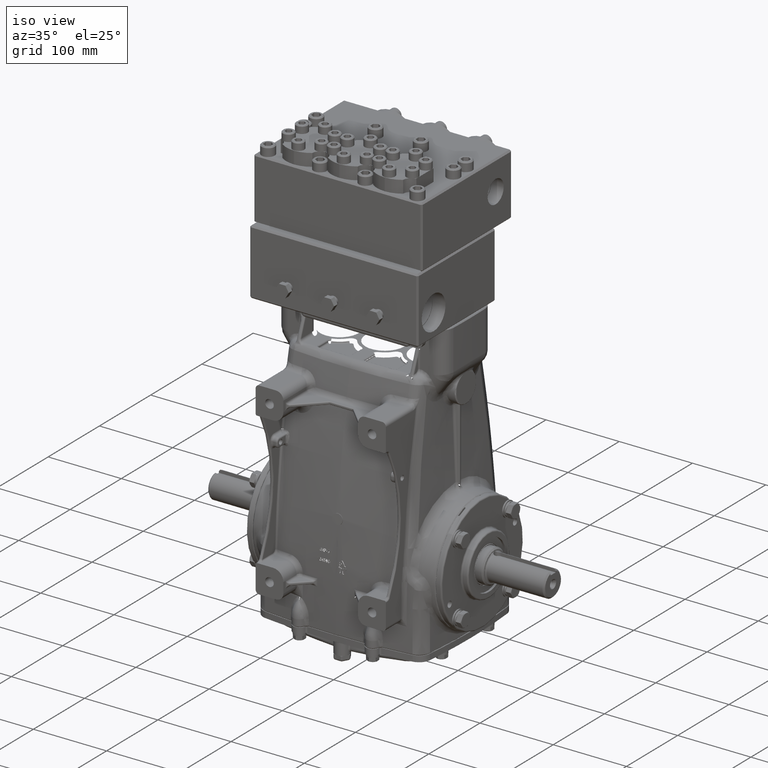
[diagram: clean part render]
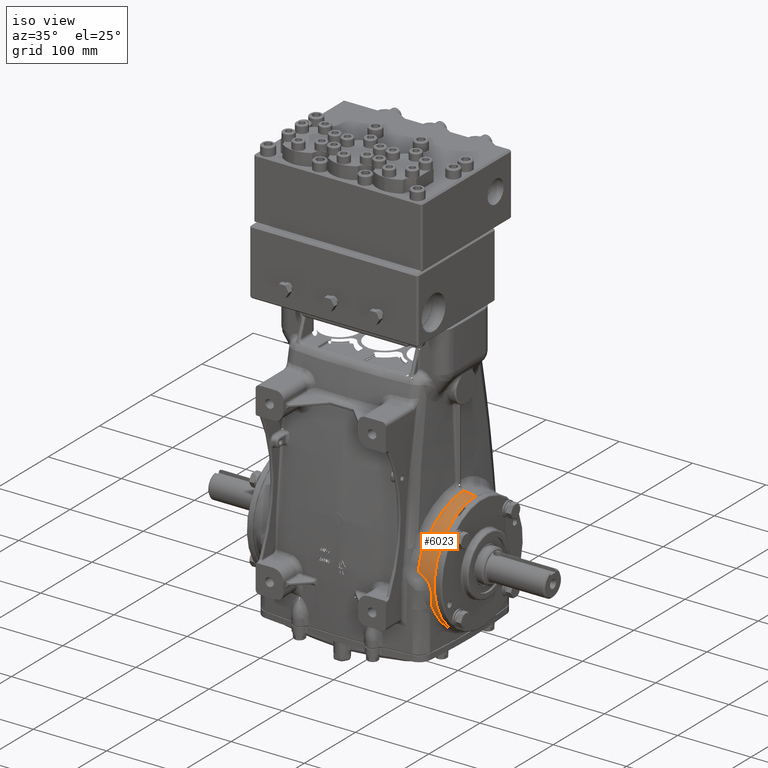
[diagram: same view with one face highlighted and labeled with its STEP entity id]
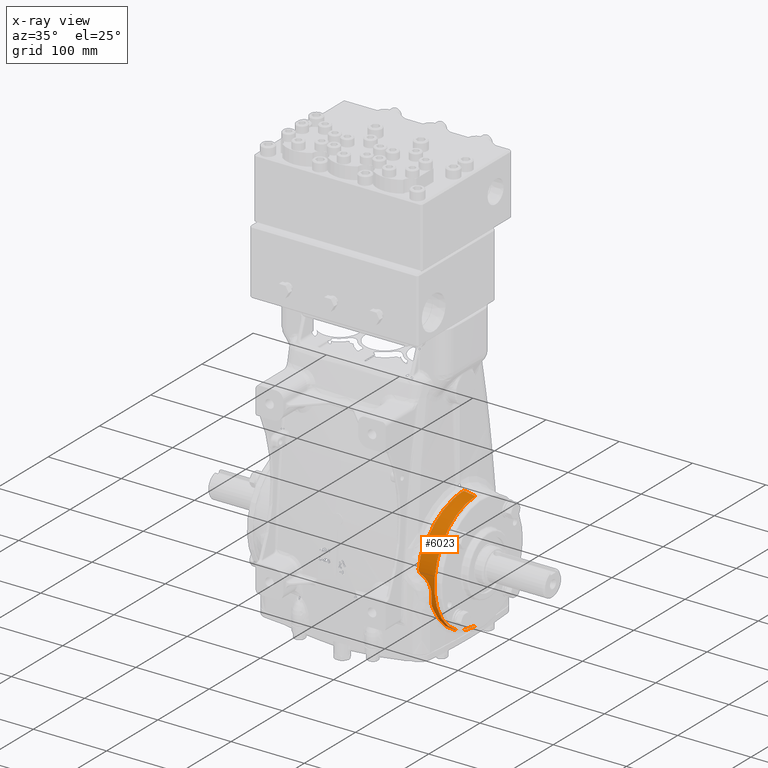
[diagram: x-ray of the same camera — body ghosted, the highlighted face saturated]
A machine part, iso view. The second image highlights one B-rep face of the part: STEP entity #6023.
The next image is the same camera in x-ray: the body ghosted, the highlighted face saturated — about 0% of this face is hidden behind the body in this view.
In plain terms, the highlighted toroidal blend (fillet) surface has major radius 710.174 mm and minor (blend) radius 800 mm.
Its self-contained STEP definition (entity closure, byte-faithful):
#1349 = ORIENTED_EDGE ( 'NONE', *, *, #37112, .F. ) ;
#2496 = CARTESIAN_POINT ( 'NONE',  ( 4.771837944189591951, -1.520853784674521147, -2.788342514089747759 ) ) ;
#3291 = CARTESIAN_POINT ( 'NONE',  ( 4.240991227555344523, -0.1264003216158212650, 3.249621060336789657 ) ) ;
#3413 = VERTEX_POINT ( 'NONE', #45603 ) ;
#3598 = B_SPLINE_CURVE_WITH_KNOTS ( 'NONE', 3,
 ( #20593, #57895, #95244, #11435 ),
 .UNSPECIFIED., .F., .F.,
 ( 4, 4 ),
 ( 0.0000000000000000000, 1.000000000000000000 ),
 .UNSPECIFIED. ) ;
#6023 = ADVANCED_FACE ( 'NONE', ( #52051 ), #57503, .T. ) ;
#7196 = CARTESIAN_POINT ( 'NONE',  ( 4.073807278298714252, -2.959947933500720829, 1.394250575635964218 ) ) ;
#7480 = EDGE_LOOP ( 'NONE', ( #92675, #117870, #113123, #77270, #1349, #46830, #14673, #45000, #47551, #41779, #33196 ) ) ;
#11200 = CARTESIAN_POINT ( 'NONE',  ( 4.068196207595590863, -3.204746991281274049, 0.6630307251519698131 ) ) ;
#11435 = CARTESIAN_POINT ( 'NONE',  ( 4.637802879207589157, -2.974517227941448461, -1.161161906720954651 ) ) ;
#11698 = CARTESIAN_POINT ( 'NONE',  ( 4.795392943022132037, -0.9920313528584013829, -3.013406244147627255 ) ) ;
#12469 = CARTESIAN_POINT ( 'NONE',  ( 4.235682771569069693, -0.6266466288404147766, 3.191829271269768231 ) ) ;
#13066 = CARTESIAN_POINT ( 'NONE',  ( 4.367240834308786290, -3.216752620590586087, 0.3194208989799462994 ) ) ;
#14326 = DIRECTION ( 'NONE',  ( 1.242565312115808949E-32, -1.000000000000000000, -1.224646799147353207E-16 ) ) ;
#14673 = ORIENTED_EDGE ( 'NONE', *, *, #42346, .F. ) ;
#15026 = DIRECTION ( 'NONE',  ( 1.000000000000000000, -0.0000000000000000000, 1.014631576207051350E-16 ) ) ;
#15574 = B_SPLINE_CURVE_WITH_KNOTS ( 'NONE', 3,
 ( #39999, #77309, #114675, #30834, #68116, #105473, #21640, #58928, #96278, #12469, #49748, #87084, #3291, #40594 ),
 .UNSPECIFIED., .F., .F.,
 ( 4, 2, 2, 2, 2, 2, 4 ),
 ( 0.0000000000000000000, 0.1250000000000001665, 0.2500000000000002776, 0.3125000000000003331, 0.3750000000000003886, 0.4375000000000003886, 0.4998300329576842449 ),
 .UNSPECIFIED. ) ;
#16163 = CARTESIAN_POINT ( 'NONE',  ( 4.712714316162791128, -3.132927912143915083, -0.5762095819734214253 ) ) ;
#16339 = CARTESIAN_POINT ( 'NONE',  ( 4.061345028220673115, -3.062310547445739051, 1.158547218389684108 ) ) ;
#16959 = CARTESIAN_POINT ( 'NONE',  ( 4.154195439504829501, -2.605888995820426324, 1.960963033933472488 ) ) ;
#18335 = CARTESIAN_POINT ( 'NONE',  ( 4.073807278298714252, -2.959947933500720829, 1.394250575635964218 ) ) ;
#18399 = CARTESIAN_POINT ( 'NONE',  ( 4.874534027504089373, 0.0000000000000000000, -3.156962035488048102 ) ) ;
#20593 = CARTESIAN_POINT ( 'NONE',  ( 4.671995195232788944, -2.817595301799574514, -1.491509972633686898 ) ) ;
#20855 = CARTESIAN_POINT ( 'NONE',  ( 4.811355340674883685, -0.2864910433851791671, -3.157124972228495086 ) ) ;
#21457 = CARTESIAN_POINT ( 'NONE',  ( 4.671995195232788944, -2.817595301799574514, -1.491509972633686898 ) ) ;
#21640 = CARTESIAN_POINT ( 'NONE',  ( 4.220173851410993215, -1.229921036881801433, 3.013587734413658570 ) ) ;
#21727 = CARTESIAN_POINT ( 'NONE',  ( 4.065899536981142148, -3.210822228740024542, 0.6351427620540452956 ) ) ;
#22212 = CARTESIAN_POINT ( 'NONE',  ( 4.650113480402072064, -3.193484163472381177, 0.0007540518981901967463 ) ) ;
#22786 = VERTEX_POINT ( 'NONE', #90458 ) ;
#24289 = VERTEX_POINT ( 'NONE', #101377 ) ;
#24397 = EDGE_CURVE ( 'NONE', #24289, #102843, #80106, .T. ) ;
#25365 = CARTESIAN_POINT ( 'NONE',  ( 4.635675277813445128, -3.027706349366337424, -1.018264804609938068 ) ) ;
#25543 = CARTESIAN_POINT ( 'NONE',  ( 4.078678006966289793, -3.177020150542402277, 0.7903088960410987740 ) ) ;
#26136 = CARTESIAN_POINT ( 'NONE',  ( 4.073807278298714252, -2.959947933500720829, 1.394250575635964218 ) ) ;
#29478 = B_SPLINE_CURVE_WITH_KNOTS ( 'NONE', 3,
 ( #68701, #106060, #22212, #59523, #96872, #13066, #50341, #87672 ),
 .UNSPECIFIED., .F., .F.,
 ( 4, 2, 2, 4 ),
 ( 0.0000000000000000000, 0.4999999999999998890, 0.7500000000000000000, 1.000000000000000000 ),
 .UNSPECIFIED. ) ;
#30648 = CARTESIAN_POINT ( 'NONE',  ( 4.701454750326896637, -2.506536445759398823, -1.967938369618047689 ) ) ;
#30834 = CARTESIAN_POINT ( 'NONE',  ( 4.192740757286638420, -1.893362396004754089, 2.661075382058560646 ) ) ;
#30923 = CARTESIAN_POINT ( 'NONE',  ( 4.095643959304354098, -3.226644982486874813, 0.5252720837617583793 ) ) ;
#33196 = ORIENTED_EDGE ( 'NONE', *, *, #116261, .F. ) ;
#33959 = EDGE_CURVE ( 'NONE', #74265, #99942, #15574, .T. ) ;
#34404 = CARTESIAN_POINT ( 'NONE',  ( -1.050220729719372817E-16, 0.0000000000000000000, 27.95960753795100473 ) ) ;
#35268 = B_SPLINE_CURVE_WITH_KNOTS ( 'NONE', 3,
 ( #109359, #25543, #62830, #100174, #16339, #53629, #90983, #7196 ),
 .UNSPECIFIED., .F., .F.,
 ( 4, 2, 2, 4 ),
 ( 0.0000000000000000000, 0.4999999999999998890, 0.7499999999999998890, 1.000000000000000000 ),
 .UNSPECIFIED. ) ;
#37112 = EDGE_CURVE ( 'NONE', #102843, #55502, #35268, .T. ) ;
#38094 = CIRCLE ( 'NONE', #106480, 3.156962035488045437 ) ;
#38322 = CIRCLE ( 'NONE', #106699, 31.49606299212598515 ) ;
#39327 = CARTESIAN_POINT ( 'NONE',  ( 4.713406592358675873, -3.169753574594053269, -0.2763370845249724650 ) ) ;
#39807 = CARTESIAN_POINT ( 'NONE',  ( 4.750268013655625232, -1.891747720313454284, -2.567528510850987988 ) ) ;
#39999 = CARTESIAN_POINT ( 'NONE',  ( 4.154195439504829501, -2.605888995820426324, 1.960963033933472488 ) ) ;
#40087 = CARTESIAN_POINT ( 'NONE',  ( 4.241293303835878881, -3.226001539249478522, 0.3907520896382901676 ) ) ;
#40088 = CIRCLE ( 'NONE', #108495, 31.49606299212598515 ) ;
#40266 = CARTESIAN_POINT ( 'NONE',  ( 4.637802879207589157, -2.974517227941448461, -1.161161906720954651 ) ) ;
#40365 = VERTEX_POINT ( 'NONE', #40266 ) ;
#40594 = CARTESIAN_POINT ( 'NONE',  ( 4.240991282790828265, 4.693753063019659436E-11, 3.249621495888693978 ) ) ;
#41779 = ORIENTED_EDGE ( 'NONE', *, *, #120854, .F. ) ;
#42346 = EDGE_CURVE ( 'NONE', #106867, #24289, #29478, .T. ) ;
#42908 = CARTESIAN_POINT ( 'NONE',  ( 2.731847993664263218E-15, 0.0000000000000000000, 0.0000000000000000000 ) ) ;
#43532 = CARTESIAN_POINT ( 'NONE',  ( 4.240991282790828265, 4.693753063019659436E-11, 3.249621495888693978 ) ) ;
#45000 = ORIENTED_EDGE ( 'NONE', *, *, #107306, .F. ) ;
#45341 = B_SPLINE_CURVE_WITH_KNOTS ( 'NONE', 3,
 ( #26136, #63425, #100788, #16959 ),
 .UNSPECIFIED., .F., .F.,
 ( 4, 4 ),
 ( 0.0000000000000000000, 1.000000000000000000 ),
 .UNSPECIFIED. ) ;
#45603 = CARTESIAN_POINT ( 'NONE',  ( 4.874534027504088485, -3.866163451790151959E-16, 3.156962035488049434 ) ) ;
#46830 = ORIENTED_EDGE ( 'NONE', *, *, #24397, .F. ) ;
#47551 = ORIENTED_EDGE ( 'NONE', *, *, #64059, .F. ) ;
#48981 = CARTESIAN_POINT ( 'NONE',  ( 4.790303181778289954, -1.127149556421079390, -2.966354360120121214 ) ) ;
#49748 = CARTESIAN_POINT ( 'NONE',  ( 4.237652013864519951, -0.5030473467529149589, 3.213374542601915795 ) ) ;
#49805 = VERTEX_POINT ( 'NONE', #95870 ) ;
#50341 = CARTESIAN_POINT ( 'NONE',  ( 4.306769883665692689, -3.220916920437658870, 0.3587307481807804899 ) ) ;
#51606 = DIRECTION ( 'NONE',  ( 0.0000000000000000000, 1.224646799147353454E-16, -1.000000000000000000 ) ) ;
#52051 = FACE_OUTER_BOUND ( 'NONE', #7480, .T. ) ;
#52302 = DIRECTION ( 'NONE',  ( 1.730681562182256507E-16, 0.0000000000000000000, -1.000000000000000000 ) ) ;
#53456 = CARTESIAN_POINT ( 'NONE',  ( 4.726144590640167564, -3.154645668425971827, -0.4274351538967189890 ) ) ;
#53629 = CARTESIAN_POINT ( 'NONE',  ( 4.059840737327628624, -3.014675423165702028, 1.277885004256982260 ) ) ;
#55502 = VERTEX_POINT ( 'NONE', #18335 ) ;
#57503 = TOROIDAL_SURFACE ( 'NONE', #88765, -27.95960753795100473, 31.49606299212598515 ) ;
#57895 = CARTESIAN_POINT ( 'NONE',  ( 4.666255815391464168, -2.875076720657021578, -1.384762528334551934 ) ) ;
#58151 = CARTESIAN_POINT ( 'NONE',  ( 4.806998052755426798, -0.5733832258980167129, -3.118500223422494333 ) ) ;
#58928 = CARTESIAN_POINT ( 'NONE',  ( 4.227452895496238483, -0.9916091823206050204, 3.099148475327404118 ) ) ;
#59012 = CARTESIAN_POINT ( 'NONE',  ( 4.068196207595590863, -3.204746991281274049, 0.6630307251519698131 ) ) ;
#59523 = CARTESIAN_POINT ( 'NONE',  ( 4.526293261852023520, -3.205334629084368725, 0.1742590804353988387 ) ) ;
#62656 = CARTESIAN_POINT ( 'NONE',  ( 4.659041407288404990, -3.069411880862395581, -0.8719676970051276621 ) ) ;
#62830 = CARTESIAN_POINT ( 'NONE',  ( 4.074960399868632344, -3.143860997543816982, 0.9148230346869269392 ) ) ;
#63425 = CARTESIAN_POINT ( 'NONE',  ( 4.114205068007505517, -2.860559231075403996, 1.592883702391712397 ) ) ;
#64059 = EDGE_CURVE ( 'NONE', #22786, #40365, #3598, .T. ) ;
#67336 = CARTESIAN_POINT ( 'NONE',  ( 4.812441923013113687, -1.481110120753864741E-07, -3.166625558008697272 ) ) ;
#67935 = CARTESIAN_POINT ( 'NONE',  ( 4.686071756050094628, -2.674197270636395007, -1.737510335107369741 ) ) ;
#68116 = CARTESIAN_POINT ( 'NONE',  ( 4.202810139903888853, -1.683555856827035235, 2.796809853205855845 ) ) ;
#68205 = CARTESIAN_POINT ( 'NONE',  ( 4.083574776814294260, -3.223938539801954217, 0.5512469625813745111 ) ) ;
#68701 = CARTESIAN_POINT ( 'NONE',  ( 4.713406592358675873, -3.169753574594053269, -0.2763370845249724650 ) ) ;
#71692 = DIRECTION ( 'NONE',  ( 0.0000000000000000000, 1.000000000000000000, 0.0000000000000000000 ) ) ;
#71823 = CARTESIAN_POINT ( 'NONE',  ( 4.637802879207589157, -2.974517227941448461, -1.161161906720954651 ) ) ;
#74265 = VERTEX_POINT ( 'NONE', #85739 ) ;
#77118 = CARTESIAN_POINT ( 'NONE',  ( 4.734056748507328827, -2.115109540578937963, -2.390187588732937574 ) ) ;
#77270 = ORIENTED_EDGE ( 'NONE', *, *, #108000, .F. ) ;
#77309 = CARTESIAN_POINT ( 'NONE',  ( 4.162494047696327470, -2.455744562737092185, 2.158650908438247917 ) ) ;
#77396 = CARTESIAN_POINT ( 'NONE',  ( 4.189968773506881128, -3.229987173090322017, 0.4158523669530884703 ) ) ;
#80106 = B_SPLINE_CURVE_WITH_KNOTS ( 'NONE', 3,
 ( #40087, #77396, #114754, #30923, #68205, #105564, #21727, #59012 ),
 .UNSPECIFIED., .F., .F.,
 ( 4, 2, 2, 4 ),
 ( 0.0000000000000000000, 0.5000000000000000000, 0.7499999999999998890, 1.000000000000000000 ),
 .UNSPECIFIED. ) ;
#80212 = DIRECTION ( 'NONE',  ( -1.000000000000000000, 0.0000000000000000000, -1.014631576207059362E-16 ) ) ;
#85739 = CARTESIAN_POINT ( 'NONE',  ( 4.154195439504829501, -2.605888995820426324, 1.960963033933472488 ) ) ;
#86283 = CARTESIAN_POINT ( 'NONE',  ( 4.778555225248720895, -1.391094182752331765, -2.854125396673355741 ) ) ;
#86949 = B_SPLINE_CURVE_WITH_KNOTS ( 'NONE', 3,
 ( #67336, #104698, #20855, #58151, #95511, #11698, #48981, #86283, #2496, #39807, #77118, #114483, #30648, #67935, #105291, #21457 ),
 .UNSPECIFIED., .F., .F.,
 ( 4, 2, 2, 2, 2, 2, 2, 4 ),
 ( 0.5000483756456942652, 0.5624999999999996669, 0.6249999999999996669, 0.6874999999999996669, 0.7499999999999997780, 0.8749999999999997780, 0.9375000000000000000, 1.000000000000000000 ),
 .UNSPECIFIED. ) ;
#87084 = CARTESIAN_POINT ( 'NONE',  ( 4.240305217706549890, -0.2533055434038216092, 3.242258551654292553 ) ) ;
#87672 = CARTESIAN_POINT ( 'NONE',  ( 4.241293303835878881, -3.226001539249478522, 0.3907520896382901676 ) ) ;
#88765 = AXIS2_PLACEMENT_3D ( 'NONE', #42908, #80212, #117572 ) ;
#90458 = CARTESIAN_POINT ( 'NONE',  ( 4.671995195232788944, -2.817595301799574514, -1.491509972633686898 ) ) ;
#90805 = CARTESIAN_POINT ( 'NONE',  ( 4.713406592358675873, -3.169753574594053269, -0.2763370845249724650 ) ) ;
#90983 = CARTESIAN_POINT ( 'NONE',  ( 4.062115507457966679, -2.988712625195999451, 1.336762948548139152 ) ) ;
#92675 = ORIENTED_EDGE ( 'NONE', *, *, #113984, .F. ) ;
#95244 = CARTESIAN_POINT ( 'NONE',  ( 4.653840769993426996, -2.927867021512045032, -1.274098702111998715 ) ) ;
#95511 = CARTESIAN_POINT ( 'NONE',  ( 4.803734397380607035, -0.7155610294733516508, -3.089427977752311705 ) ) ;
#95870 = CARTESIAN_POINT ( 'NONE',  ( 4.812441923013113687, -1.481110120753864741E-07, -3.166625558008697272 ) ) ;
#96278 = CARTESIAN_POINT ( 'NONE',  ( 4.230583354813282959, -0.8709274565133807711, 3.134715635904268716 ) ) ;
#96872 = CARTESIAN_POINT ( 'NONE',  ( 4.476645519390706873, -3.208994383556206920, 0.2276715050428013698 ) ) ;
#98149 = CARTESIAN_POINT ( 'NONE',  ( 5.568718060300463558E-15, 3.424064387676790698E-15, -27.95960753795100473 ) ) ;
#98481 = VERTEX_POINT ( 'NONE', #18399 ) ;
#98860 = CARTESIAN_POINT ( 'NONE',  ( 4.874534027504088485, 0.0000000000000000000, 4.945856143601376801E-16 ) ) ;
#99544 = B_SPLINE_CURVE_WITH_KNOTS ( 'NONE', 3,
 ( #71823, #109182, #25365, #62656, #100008, #16163, #53456, #90805 ),
 .UNSPECIFIED., .F., .F.,
 ( 4, 2, 2, 4 ),
 ( 0.0000000000000000000, 0.2500000000000000000, 0.5000000000000000000, 1.000000000000000000 ),
 .UNSPECIFIED. ) ;
#99942 = VERTEX_POINT ( 'NONE', #43532 ) ;
#100008 = CARTESIAN_POINT ( 'NONE',  ( 4.674638175687860553, -3.086997047895380319, -0.7981781258625720854 ) ) ;
#100174 = CARTESIAN_POINT ( 'NONE',  ( 4.065177188191593238, -3.083984889762754644, 1.098068107524425852 ) ) ;
#100788 = CARTESIAN_POINT ( 'NONE',  ( 4.146795280029016872, -2.739778042975806294, 1.784677835696039105 ) ) ;
#101377 = CARTESIAN_POINT ( 'NONE',  ( 4.241293303835878881, -3.226001539249478522, 0.3907520896382901676 ) ) ;
#102843 = VERTEX_POINT ( 'NONE', #11200 ) ;
#104698 = CARTESIAN_POINT ( 'NONE',  ( 4.812441922088052770, -0.1431869754493966251, -3.166625618446515134 ) ) ;
#105291 = CARTESIAN_POINT ( 'NONE',  ( 4.678748902777146945, -2.749955120518025264, -1.617123025120611901 ) ) ;
#105473 = CARTESIAN_POINT ( 'NONE',  ( 4.216049932389253740, -1.346590706294731099, 2.963853008133497280 ) ) ;
#105564 = CARTESIAN_POINT ( 'NONE',  ( 4.068598189055826708, -3.216070234104933867, 0.6060814687319485694 ) ) ;
#106060 = CARTESIAN_POINT ( 'NONE',  ( 4.701623159952063702, -3.183729317627611355, -0.1365620709503548025 ) ) ;
#106480 = AXIS2_PLACEMENT_3D ( 'NONE', #98860, #15026, #52302 ) ;
#106631 = EDGE_CURVE ( 'NONE', #3413, #99942, #38322, .T. ) ;
#106699 = AXIS2_PLACEMENT_3D ( 'NONE', #98149, #14326, #51606 ) ;
#106867 = VERTEX_POINT ( 'NONE', #39327 ) ;
#107306 = EDGE_CURVE ( 'NONE', #40365, #106867, #99544, .T. ) ;
#108000 = EDGE_CURVE ( 'NONE', #55502, #74265, #45341, .T. ) ;
#108495 = AXIS2_PLACEMENT_3D ( 'NONE', #34404, #71692, #109053 ) ;
#109053 = DIRECTION ( 'NONE',  ( 0.0000000000000000000, 0.0000000000000000000, 1.000000000000000000 ) ) ;
#109182 = CARTESIAN_POINT ( 'NONE',  ( 4.627811670758023688, -3.003579151184962548, -1.090805080114700454 ) ) ;
#109359 = CARTESIAN_POINT ( 'NONE',  ( 4.068196207595590863, -3.204746991281274049, 0.6630307251519698131 ) ) ;
#113123 = ORIENTED_EDGE ( 'NONE', *, *, #33959, .F. ) ;
#113984 = EDGE_CURVE ( 'NONE', #3413, #98481, #38094, .T. ) ;
#114483 = CARTESIAN_POINT ( 'NONE',  ( 4.709561670205832939, -2.414074059703260833, -2.078551350158719835 ) ) ;
#114675 = CARTESIAN_POINT ( 'NONE',  ( 4.172413239403286234, -2.282509996542392283, 2.339665665247994131 ) ) ;
#114754 = CARTESIAN_POINT ( 'NONE',  ( 4.143842590774164947, -3.231423251180023382, 0.4531311649784011686 ) ) ;
#116261 = EDGE_CURVE ( 'NONE', #98481, #49805, #40088, .T. ) ;
#117572 = DIRECTION ( 'NONE',  ( 1.014631576207059362E-16, 0.0000000000000000000, -1.000000000000000000 ) ) ;
#117870 = ORIENTED_EDGE ( 'NONE', *, *, #106631, .T. ) ;
#120854 = EDGE_CURVE ( 'NONE', #49805, #22786, #86949, .T. ) ;